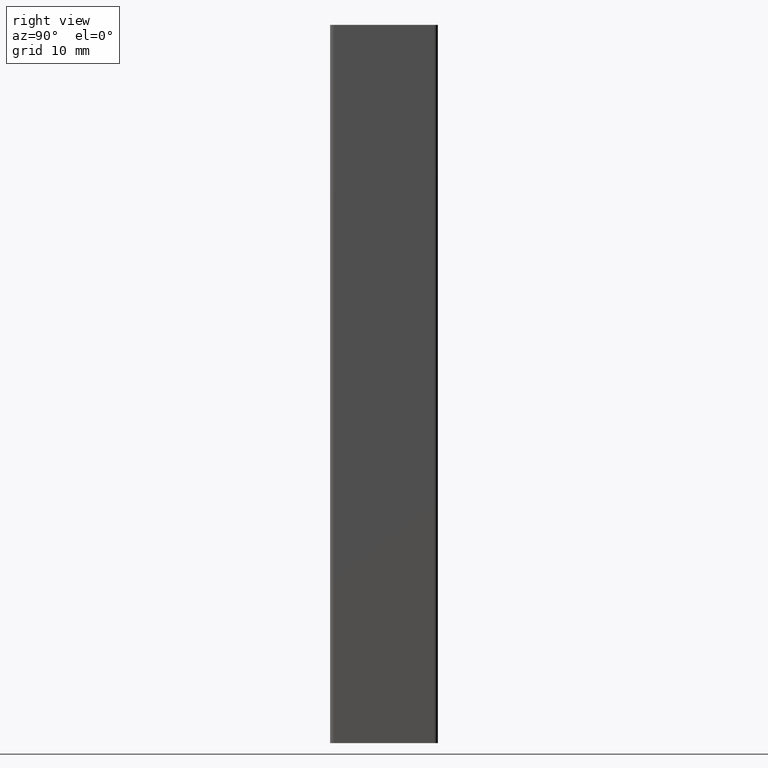
[diagram: clean part render]
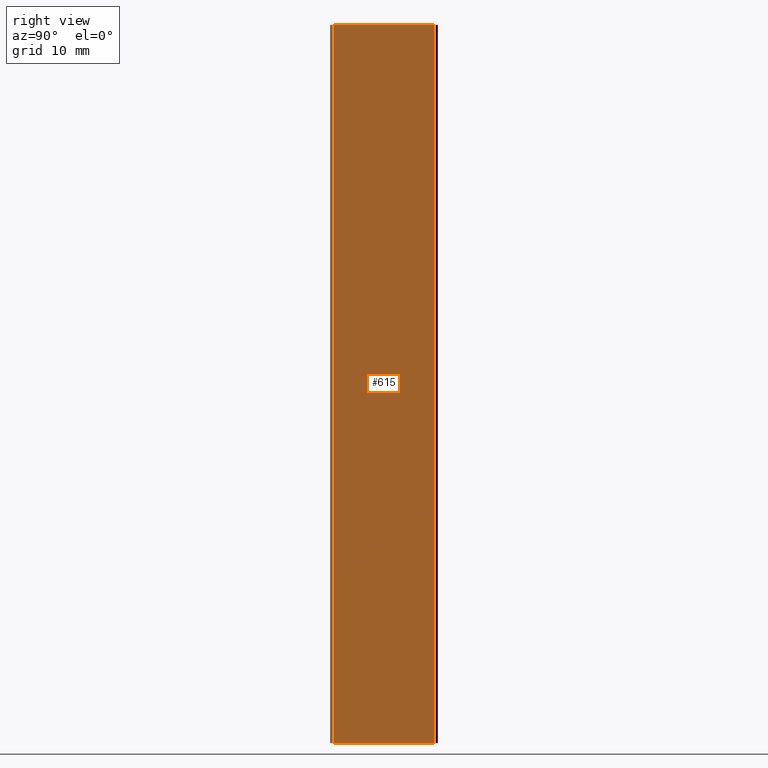
[diagram: same view with one face highlighted and labeled with its STEP entity id]
A machine part, right view. The second image highlights one B-rep face of the part: STEP entity #615.
In plain terms, the highlighted planar face has unit normal (-1, 0, 0).
Its self-contained STEP definition (entity closure, byte-faithful):
#3 = VECTOR ( 'NONE', #94, 1000.000000000000000 ) ;
#21 = ORIENTED_EDGE ( 'NONE', *, *, #467, .T. ) ;
#29 = DIRECTION ( 'NONE',  ( 0.000000000000000000, 0.000000000000000000, 1.000000000000000000 ) ) ;
#30 = VERTEX_POINT ( 'NONE', #321 ) ;
#72 = VECTOR ( 'NONE', #315, 1000.000000000000000 ) ;
#90 = LINE ( 'NONE', #184, #72 ) ;
#94 = DIRECTION ( 'NONE',  ( -0.000000000000000000, -0.000000000000000000, -1.000000000000000000 ) ) ;
#100 = FACE_OUTER_BOUND ( 'NONE', #437, .T. ) ;
#184 = CARTESIAN_POINT ( 'NONE',  ( 6.000000000000001776, 0.5000000000000000000, 0.000000000000000000 ) ) ;
#193 = EDGE_CURVE ( 'NONE', #30, #242, #492, .T. ) ;
#226 = ORIENTED_EDGE ( 'NONE', *, *, #193, .F. ) ;
#242 = VERTEX_POINT ( 'NONE', #896 ) ;
#248 = PLANE ( 'NONE',  #494 ) ;
#293 = CARTESIAN_POINT ( 'NONE',  ( 6.000000000000001776, 0.5000000000000000000, 100.0000000000000000 ) ) ;
#304 = DIRECTION ( 'NONE',  ( -1.000000000000000000, 0.000000000000000000, 0.000000000000000000 ) ) ;
#315 = DIRECTION ( 'NONE',  ( 0.000000000000000000, 1.000000000000000000, 0.000000000000000000 ) ) ;
#321 = CARTESIAN_POINT ( 'NONE',  ( 6.000000000000001776, 0.5000000000000000000, 100.0000000000000000 ) ) ;
#342 = CARTESIAN_POINT ( 'NONE',  ( 6.000000000000001776, 14.49999999999999822, 0.000000000000000000 ) ) ;
#353 = CARTESIAN_POINT ( 'NONE',  ( 6.000000000000001776, 0.5000000000000000000, 100.0000000000000000 ) ) ;
#389 = EDGE_CURVE ( 'NONE', #242, #798, #697, .T. ) ;
#430 = DIRECTION ( 'NONE',  ( -0.000000000000000000, -0.000000000000000000, -1.000000000000000000 ) ) ;
#437 = EDGE_LOOP ( 'NONE', ( #537, #513, #226, #21 ) ) ;
#463 = CARTESIAN_POINT ( 'NONE',  ( 6.000000000000001776, 0.5000000000000000000, 0.000000000000000000 ) ) ;
#467 = EDGE_CURVE ( 'NONE', #30, #613, #868, .T. ) ;
#492 = LINE ( 'NONE', #353, #791 ) ;
#494 = AXIS2_PLACEMENT_3D ( 'NONE', #673, #304, #29 ) ;
#513 = ORIENTED_EDGE ( 'NONE', *, *, #389, .F. ) ;
#537 = ORIENTED_EDGE ( 'NONE', *, *, #640, .T. ) ;
#613 = VERTEX_POINT ( 'NONE', #463 ) ;
#615 = ADVANCED_FACE ( 'NONE', ( #100 ), #248, .F. ) ;
#640 = EDGE_CURVE ( 'NONE', #613, #798, #90, .T. ) ;
#673 = CARTESIAN_POINT ( 'NONE',  ( 6.000000000000001776, 0.5000000000000000000, 100.0000000000000000 ) ) ;
#697 = LINE ( 'NONE', #919, #909 ) ;
#791 = VECTOR ( 'NONE', #920, 1000.000000000000000 ) ;
#798 = VERTEX_POINT ( 'NONE', #342 ) ;
#868 = LINE ( 'NONE', #293, #3 ) ;
#896 = CARTESIAN_POINT ( 'NONE',  ( 6.000000000000001776, 14.49999999999999822, 100.0000000000000000 ) ) ;
#909 = VECTOR ( 'NONE', #430, 1000.000000000000000 ) ;
#919 = CARTESIAN_POINT ( 'NONE',  ( 6.000000000000001776, 14.49999999999999822, 100.0000000000000000 ) ) ;
#920 = DIRECTION ( 'NONE',  ( 0.000000000000000000, 1.000000000000000000, 0.000000000000000000 ) ) ;